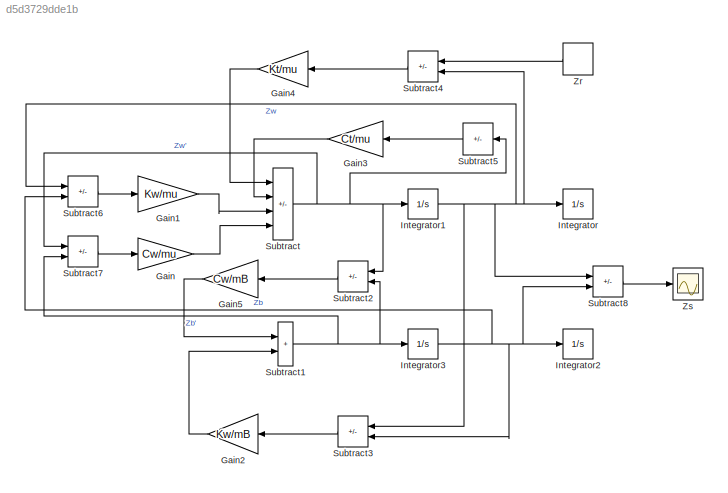
MODEL slx_d5d3729dde1b
KIND model
CONFIG AbsTol = auto
CONFIG EnableMultiTasking = off
CONFIG FixedStep = auto
CONFIG MaxStep = auto
CONFIG MinStep = auto
CONFIG RelTol = 1e-3
CONFIG SampleTimeConstraint = Unconstrained
CONFIG Solver = VariableStepAuto
CONFIG SolverName = VariableStepAuto
CONFIG StartTime = 0.0
CONFIG StopTime = 10.0
BLOCK [Gain] Gain
  Gain = Cw/mu
BLOCK [Gain] Gain1
  Gain = Kw/mu
BLOCK [Gain] Gain2
  Gain = Kw/mB
BLOCK [Gain] Gain3
  Gain = Ct/mu
BLOCK [Gain] Gain4
  Gain = Kt/mu
BLOCK [Gain] Gain5
  Gain = Cw/mB
BLOCK [Integrator] Integrator
  Ports = [1, 1]
BLOCK [Integrator] Integrator1
  Ports = [1, 1]
BLOCK [Integrator] Integrator2
  Ports = [1, 1]
BLOCK [Integrator] Integrator3
  Ports = [1, 1]
BLOCK [Sum] Subtract
  IconShape = rectangular
  Inputs = ++--
  Ports = [4, 1]
BLOCK [Sum] Subtract1
  IconShape = rectangular
  Ports = [2, 1]
BLOCK [Sum] Subtract2
  IconShape = rectangular
  Inputs = +-
  Ports = [2, 1]
BLOCK [Sum] Subtract3
  IconShape = rectangular
  Inputs = +-
  Ports = [2, 1]
BLOCK [Sum] Subtract4
  IconShape = rectangular
  Inputs = +-
  Ports = [2, 1]
BLOCK [Sum] Subtract5
  IconShape = rectangular
  Inputs = -
  Ports = [1, 1]
BLOCK [Sum] Subtract6
  IconShape = rectangular
  Inputs = +-
  Ports = [2, 1]
BLOCK [Sum] Subtract7
  IconShape = rectangular
  Inputs = +-
  Ports = [2, 1]
BLOCK [Sum] Subtract8
  IconShape = rectangular
  Inputs = +-
  Ports = [2, 1]
BLOCK [DiscretePulseGenerator] Zr
  Period = 10
  Ports = [0, 1]
  PulseType = Time based
  PulseWidth = 5
BLOCK [Scope] Zs
  Floating = off
  NumInputPorts = 1
  Ports = [1]
  ScopeSpecificationString = Simulink.scopes.TimeScopeBlockCfg('CurrentConfiguration', extmgr.ConfigurationSet(extmgr.Configuration('Core','General UI',true),extmgr.Configuration('Core','Source UI',true),extmgr.Configuration('Sources','WiredSimulink',true),extmgr.Configuration('Visuals','Time Domain',true),extmgr.Configuration('Tools','Plot Navigation',true),extmgr.Configuration('Tools','Measurements',true)),'Version','2020a'...<+1ch>
LINE Gain1:1 -> Subtract:3
LINE Gain2:1 -> Subtract1:2
LINE Gain3:1 -> Subtract:2
LINE Gain4:1 -> Subtract:1
LINE Gain5:1 -> Subtract1:1
LINE Gain:1 -> Subtract:4
NET Integrator1:1 -> Integrator:1, Subtract3:1, Subtract4:2, Subtract6:1, Subtract8:1
NET Integrator3:1 -> Integrator2:1, Subtract3:2, Subtract6:2, Subtract8:2
NET Subtract1:1 -> Integrator3:1, Subtract2:2, Subtract7:2
LINE Subtract2:1 -> Gain5:1
LINE Subtract3:1 -> Gain2:1
LINE Subtract4:1 -> Gain4:1
LINE Subtract5:1 -> Gain3:1
LINE Subtract6:1 -> Gain1:1
LINE Subtract7:1 -> Gain:1
LINE Subtract8:1 -> Zs:1
NET Subtract:1 -> Integrator1:1, Subtract2:1, Subtract5:1, Subtract7:1
LINE Zr:1 -> Subtract4:1
note: NET lines group one-source signal fan-out (src -> all destinations, sorted); 1:1 wires keep LINE
